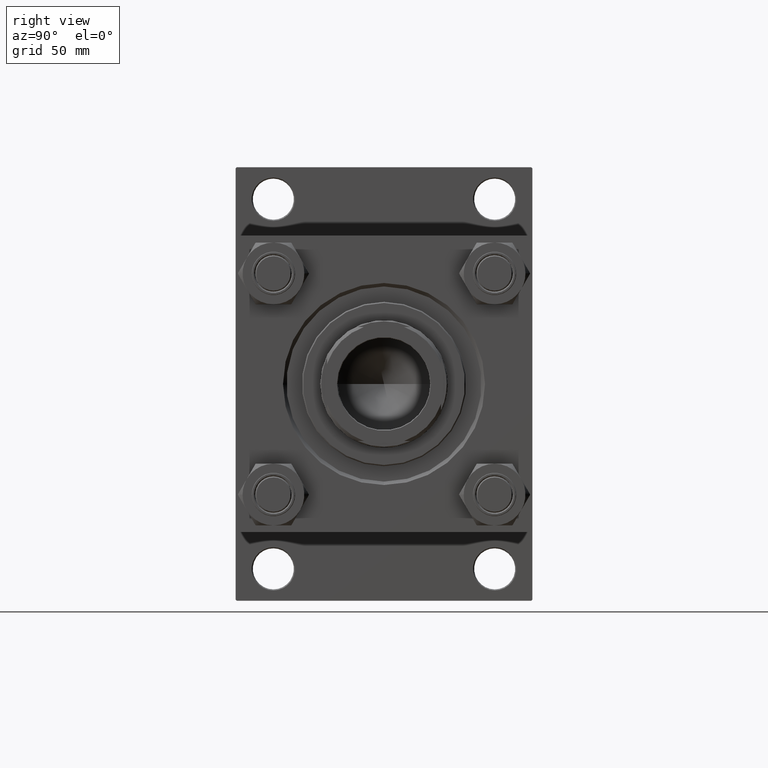
[diagram: clean part render]
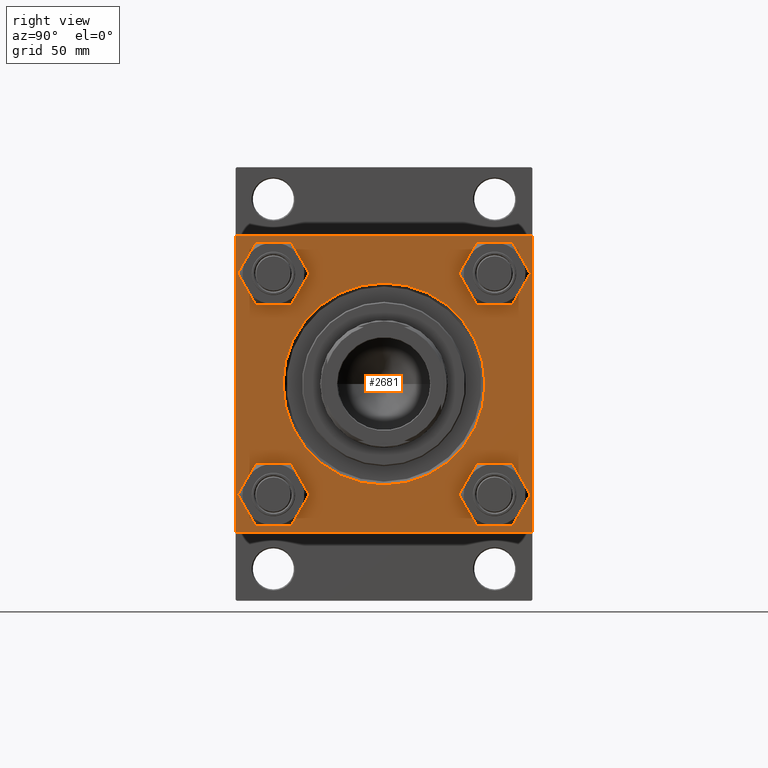
[diagram: same view with one face highlighted and labeled with its STEP entity id]
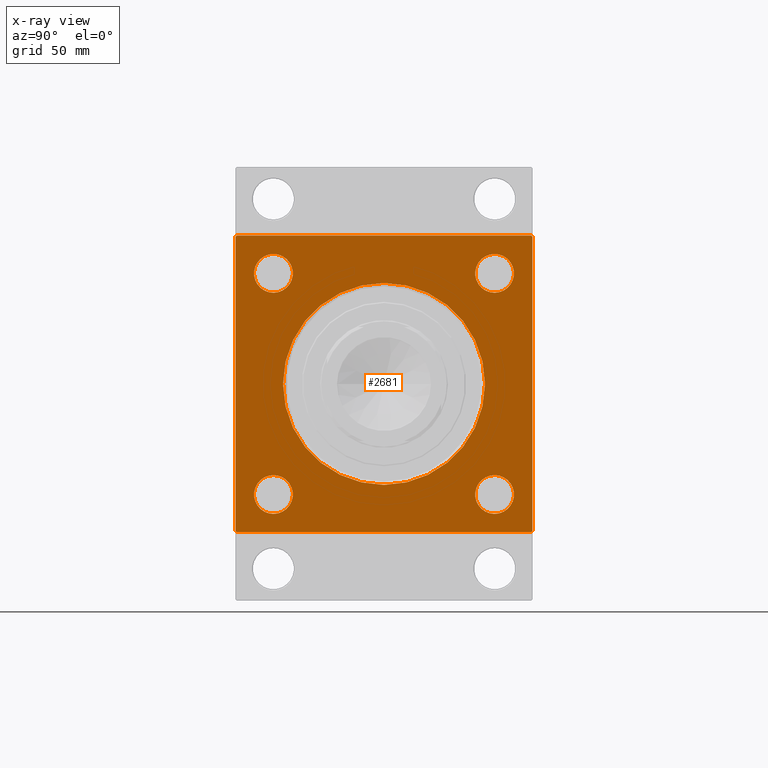
[diagram: x-ray of the same camera — body ghosted, the highlighted face saturated]
A machine part, right view. The second image highlights one B-rep face of the part: STEP entity #2681.
The next image is the same camera in x-ray: the body ghosted, the highlighted face saturated — about 0% of this face is hidden behind the body in this view.
In plain terms, the highlighted planar face has unit normal (-1, 0, 0).
Its self-contained STEP definition (entity closure, byte-faithful):
#22 = EDGE_CURVE ( 'NONE', #35112, #5220, #22775, .T. ) ;
#842 = CARTESIAN_POINT ( 'NONE',  ( 188.0000000000000000, 64.50000000000005684, 65.00000000000001421 ) ) ;
#1157 = EDGE_LOOP ( 'NONE', ( #41750, #43307 ) ) ;
#1278 = VERTEX_POINT ( 'NONE', #19211 ) ;
#1373 = EDGE_CURVE ( 'NONE', #34641, #18215, #15503, .T. ) ;
#1544 = DIRECTION ( 'NONE',  ( 0.000000000000000000, 0.000000000000000000, 1.000000000000000000 ) ) ;
#1864 = CARTESIAN_POINT ( 'NONE',  ( 188.0000000000000000, -48.44999999999999574, -48.45000000000003126 ) ) ;
#1879 = CARTESIAN_POINT ( 'NONE',  ( 188.0000000000000000, 64.49999999999997158, -64.99999999999998579 ) ) ;
#2403 = FACE_BOUND ( 'NONE', #21811, .T. ) ;
#2579 = DIRECTION ( 'NONE',  ( 0.000000000000000000, 0.000000000000000000, 1.000000000000000000 ) ) ;
#2681 = ADVANCED_FACE ( 'NONE', ( #10069, #2403, #45811, #25628, #17977, #49894 ), #26126, .F. ) ;
#2825 = CARTESIAN_POINT ( 'NONE',  ( 188.0000000000000000, 65.00000000000002842, 65.00000000000001421 ) ) ;
#2879 = CARTESIAN_POINT ( 'NONE',  ( 188.0000000000000000, 48.45000000000000995, 48.45000000000001705 ) ) ;
#2899 = EDGE_LOOP ( 'NONE', ( #28071, #20785 ) ) ;
#3054 = VECTOR ( 'NONE', #42919, 1000.000000000000000 ) ;
#3090 = CIRCLE ( 'NONE', #29185, 8.500000000000035527 ) ;
#3822 = CIRCLE ( 'NONE', #5469, 8.500000000000035527 ) ;
#4039 = CARTESIAN_POINT ( 'NONE',  ( 188.0000000000000000, 65.00000000000002842, 65.00000000000001421 ) ) ;
#4054 = EDGE_CURVE ( 'NONE', #36300, #37297, #9095, .T. ) ;
#4265 = DIRECTION ( 'NONE',  ( 0.000000000000000000, 0.000000000000000000, 1.000000000000000000 ) ) ;
#4276 = VECTOR ( 'NONE', #22883, 999.9999999999998863 ) ;
#4628 = CARTESIAN_POINT ( 'NONE',  ( 188.0000000000000000, 48.45000000000000995, 39.94999999999998153 ) ) ;
#5020 = CARTESIAN_POINT ( 'NONE',  ( 188.0000000000000000, 48.45000000000000995, -48.45000000000001705 ) ) ;
#5220 = VERTEX_POINT ( 'NONE', #45478 ) ;
#5365 = VERTEX_POINT ( 'NONE', #12258 ) ;
#5469 = AXIS2_PLACEMENT_3D ( 'NONE', #33476, #30847, #2579 ) ;
#5744 = ORIENTED_EDGE ( 'NONE', *, *, #29798, .T. ) ;
#5845 = AXIS2_PLACEMENT_3D ( 'NONE', #25017, #40611, #1544 ) ;
#6000 = CARTESIAN_POINT ( 'NONE',  ( 188.0000000000000000, 0.000000000000000000, 0.000000000000000000 ) ) ;
#7118 = VERTEX_POINT ( 'NONE', #8338 ) ;
#7213 = DIRECTION ( 'NONE',  ( 0.000000000000000000, 0.000000000000000000, 1.000000000000000000 ) ) ;
#8338 = CARTESIAN_POINT ( 'NONE',  ( 188.0000000000000000, 64.50000000000005684, 65.00000000000001421 ) ) ;
#8648 = AXIS2_PLACEMENT_3D ( 'NONE', #1864, #9535, #20772 ) ;
#8948 = DIRECTION ( 'NONE',  ( 0.000000000000000000, 0.000000000000000000, 1.000000000000000000 ) ) ;
#9095 = CIRCLE ( 'NONE', #5845, 8.500000000000035527 ) ;
#9147 = CARTESIAN_POINT ( 'NONE',  ( 188.0000000000000000, -64.49999999999991473, -65.00000000000001421 ) ) ;
#9535 = DIRECTION ( 'NONE',  ( -1.000000000000000000, 0.000000000000000000, -0.000000000000000000 ) ) ;
#9764 = EDGE_CURVE ( 'NONE', #1278, #19314, #15996, .T. ) ;
#10069 = FACE_BOUND ( 'NONE', #1157, .T. ) ;
#10455 = CIRCLE ( 'NONE', #13700, 8.500000000000035527 ) ;
#10799 = DIRECTION ( 'NONE',  ( -1.000000000000000000, 0.000000000000000000, -0.000000000000000000 ) ) ;
#11432 = EDGE_CURVE ( 'NONE', #47276, #25845, #39391, .T. ) ;
#11710 = LINE ( 'NONE', #4039, #32364 ) ;
#11925 = DIRECTION ( 'NONE',  ( 0.000000000000000000, 0.000000000000000000, -1.000000000000000000 ) ) ;
#11938 = DIRECTION ( 'NONE',  ( 0.000000000000000000, 0.000000000000000000, 1.000000000000000000 ) ) ;
#12082 = CARTESIAN_POINT ( 'NONE',  ( 188.0000000000000000, 65.00000000000002842, 64.50000000000004263 ) ) ;
#12258 = CARTESIAN_POINT ( 'NONE',  ( 188.0000000000000000, -64.49999999999991473, -65.00000000000001421 ) ) ;
#12408 = DIRECTION ( 'NONE',  ( -1.000000000000000000, 0.000000000000000000, -0.000000000000000000 ) ) ;
#12768 = CARTESIAN_POINT ( 'NONE',  ( 188.0000000000000000, -48.44999999999999574, -48.45000000000003126 ) ) ;
#12902 = ORIENTED_EDGE ( 'NONE', *, *, #33559, .T. ) ;
#13429 = VERTEX_POINT ( 'NONE', #19222 ) ;
#13700 = AXIS2_PLACEMENT_3D ( 'NONE', #35142, #12408, #19819 ) ;
#15127 = VECTOR ( 'NONE', #40549, 1000.000000000000000 ) ;
#15503 = CIRCLE ( 'NONE', #33425, 44.25000000000006395 ) ;
#15746 = CARTESIAN_POINT ( 'NONE',  ( 188.0000000000000000, -64.99999999999998579, 64.49999999999997158 ) ) ;
#15996 = LINE ( 'NONE', #15746, #4276 ) ;
#16166 = DIRECTION ( 'NONE',  ( 0.000000000000000000, -0.7071067811865474617, 0.7071067811865474617 ) ) ;
#16408 = ORIENTED_EDGE ( 'NONE', *, *, #42881, .T. ) ;
#16655 = CARTESIAN_POINT ( 'NONE',  ( 188.0000000000000000, 0.000000000000000000, 0.000000000000000000 ) ) ;
#16672 = VECTOR ( 'NONE', #16166, 1000.000000000000114 ) ;
#17977 = FACE_BOUND ( 'NONE', #2899, .T. ) ;
#18215 = VERTEX_POINT ( 'NONE', #48978 ) ;
#18469 = VECTOR ( 'NONE', #11925, 1000.000000000000000 ) ;
#18479 = CARTESIAN_POINT ( 'NONE',  ( 188.0000000000000000, 0.000000000000000000, -44.25000000000006395 ) ) ;
#18638 = EDGE_CURVE ( 'NONE', #33058, #37788, #24127, .T. ) ;
#18842 = AXIS2_PLACEMENT_3D ( 'NONE', #21550, #33547, #49141 ) ;
#18946 = AXIS2_PLACEMENT_3D ( 'NONE', #20094, #31337, #11938 ) ;
#19211 = CARTESIAN_POINT ( 'NONE',  ( 188.0000000000000000, -64.49999999999997158, 65.00000000000000000 ) ) ;
#19222 = CARTESIAN_POINT ( 'NONE',  ( 188.0000000000000000, -64.99999999999998579, -64.49999999999997158 ) ) ;
#19314 = VERTEX_POINT ( 'NONE', #41500 ) ;
#19557 = VERTEX_POINT ( 'NONE', #28183 ) ;
#19610 = ORIENTED_EDGE ( 'NONE', *, *, #28098, .T. ) ;
#19819 = DIRECTION ( 'NONE',  ( 0.000000000000000000, 0.000000000000000000, 1.000000000000000000 ) ) ;
#20094 = CARTESIAN_POINT ( 'NONE',  ( 188.0000000000000000, -48.44999999999999574, 48.45000000000003126 ) ) ;
#20422 = EDGE_CURVE ( 'NONE', #37690, #5365, #37244, .T. ) ;
#20491 = ORIENTED_EDGE ( 'NONE', *, *, #22, .T. ) ;
#20772 = DIRECTION ( 'NONE',  ( 0.000000000000000000, 0.000000000000000000, 1.000000000000000000 ) ) ;
#20785 = ORIENTED_EDGE ( 'NONE', *, *, #33969, .T. ) ;
#21173 = EDGE_CURVE ( 'NONE', #19314, #13429, #50497, .T. ) ;
#21550 = CARTESIAN_POINT ( 'NONE',  ( 188.0000000000000000, 0.000000000000000000, 0.000000000000000000 ) ) ;
#21653 = CARTESIAN_POINT ( 'NONE',  ( 188.0000000000000000, 65.00000000000002842, -64.49999999999992895 ) ) ;
#21704 = ORIENTED_EDGE ( 'NONE', *, *, #4054, .T. ) ;
#21811 = EDGE_LOOP ( 'NONE', ( #16408, #20491 ) ) ;
#21969 = AXIS2_PLACEMENT_3D ( 'NONE', #5020, #39509, #4265 ) ;
#22604 = EDGE_CURVE ( 'NONE', #37690, #19557, #32408, .T. ) ;
#22775 = CIRCLE ( 'NONE', #21969, 8.500000000000035527 ) ;
#22883 = DIRECTION ( 'NONE',  ( -0.000000000000000000, -0.7071067811865376918, -0.7071067811865574537 ) ) ;
#23307 = LINE ( 'NONE', #842, #16672 ) ;
#23521 = CARTESIAN_POINT ( 'NONE',  ( 188.0000000000000000, -48.44999999999999574, 56.95000000000005969 ) ) ;
#23650 = CARTESIAN_POINT ( 'NONE',  ( 188.0000000000000000, -64.99999999999998579, 65.00000000000000000 ) ) ;
#23762 = CARTESIAN_POINT ( 'NONE',  ( 188.0000000000000000, -48.44999999999999574, -39.94999999999999574 ) ) ;
#24053 = DIRECTION ( 'NONE',  ( -1.000000000000000000, 0.000000000000000000, -0.000000000000000000 ) ) ;
#24127 = CIRCLE ( 'NONE', #8648, 8.500000000000035527 ) ;
#24211 = LINE ( 'NONE', #9147, #15127 ) ;
#25017 = CARTESIAN_POINT ( 'NONE',  ( 188.0000000000000000, 48.45000000000000995, 48.45000000000001705 ) ) ;
#25571 = ORIENTED_EDGE ( 'NONE', *, *, #9764, .T. ) ;
#25628 = FACE_BOUND ( 'NONE', #49653, .T. ) ;
#25663 = EDGE_CURVE ( 'NONE', #25845, #47276, #3822, .T. ) ;
#25668 = EDGE_CURVE ( 'NONE', #7118, #1278, #11710, .T. ) ;
#25753 = AXIS2_PLACEMENT_3D ( 'NONE', #6000, #37156, #37918 ) ;
#25845 = VERTEX_POINT ( 'NONE', #44887 ) ;
#26126 = PLANE ( 'NONE',  #18842 ) ;
#28071 = ORIENTED_EDGE ( 'NONE', *, *, #1373, .T. ) ;
#28098 = EDGE_CURVE ( 'NONE', #37297, #36300, #29628, .T. ) ;
#28183 = CARTESIAN_POINT ( 'NONE',  ( 188.0000000000000000, 65.00000000000002842, -64.49999999999992895 ) ) ;
#29065 = DIRECTION ( 'NONE',  ( 0.000000000000000000, -1.000000000000000000, -2.135044278125300850E-16 ) ) ;
#29185 = AXIS2_PLACEMENT_3D ( 'NONE', #12768, #43935, #8948 ) ;
#29628 = CIRCLE ( 'NONE', #42706, 8.500000000000035527 ) ;
#29798 = EDGE_CURVE ( 'NONE', #38568, #7118, #23307, .T. ) ;
#30473 = ORIENTED_EDGE ( 'NONE', *, *, #42392, .F. ) ;
#30847 = DIRECTION ( 'NONE',  ( -1.000000000000000000, 0.000000000000000000, -0.000000000000000000 ) ) ;
#31238 = EDGE_LOOP ( 'NONE', ( #35886, #12902, #36555, #38887, #30473, #5744, #41458, #25571 ) ) ;
#31337 = DIRECTION ( 'NONE',  ( -1.000000000000000000, 0.000000000000000000, -0.000000000000000000 ) ) ;
#31968 = DIRECTION ( 'NONE',  ( 0.000000000000000000, 0.000000000000000000, 1.000000000000000000 ) ) ;
#32364 = VECTOR ( 'NONE', #50531, 1000.000000000000000 ) ;
#32408 = LINE ( 'NONE', #21653, #38833 ) ;
#33058 = VERTEX_POINT ( 'NONE', #23762 ) ;
#33404 = CARTESIAN_POINT ( 'NONE',  ( 188.0000000000000000, 65.00000000000002842, -64.99999999999998579 ) ) ;
#33425 = AXIS2_PLACEMENT_3D ( 'NONE', #16655, #24053, #31968 ) ;
#33476 = CARTESIAN_POINT ( 'NONE',  ( 188.0000000000000000, -48.44999999999999574, 48.45000000000003126 ) ) ;
#33547 = DIRECTION ( 'NONE',  ( -1.000000000000000000, 0.000000000000000000, -0.000000000000000000 ) ) ;
#33559 = EDGE_CURVE ( 'NONE', #13429, #5365, #24211, .T. ) ;
#33969 = EDGE_CURVE ( 'NONE', #18215, #34641, #41260, .T. ) ;
#34641 = VERTEX_POINT ( 'NONE', #18479 ) ;
#34811 = VECTOR ( 'NONE', #29065, 1000.000000000000000 ) ;
#35112 = VERTEX_POINT ( 'NONE', #38340 ) ;
#35142 = CARTESIAN_POINT ( 'NONE',  ( 188.0000000000000000, 48.45000000000000995, -48.45000000000001705 ) ) ;
#35886 = ORIENTED_EDGE ( 'NONE', *, *, #21173, .T. ) ;
#36300 = VERTEX_POINT ( 'NONE', #4628 ) ;
#36555 = ORIENTED_EDGE ( 'NONE', *, *, #20422, .F. ) ;
#37156 = DIRECTION ( 'NONE',  ( -1.000000000000000000, 0.000000000000000000, -0.000000000000000000 ) ) ;
#37244 = LINE ( 'NONE', #33404, #34811 ) ;
#37297 = VERTEX_POINT ( 'NONE', #38251 ) ;
#37690 = VERTEX_POINT ( 'NONE', #1879 ) ;
#37788 = VERTEX_POINT ( 'NONE', #46309 ) ;
#37821 = LINE ( 'NONE', #2825, #3054 ) ;
#37918 = DIRECTION ( 'NONE',  ( 0.000000000000000000, 0.000000000000000000, 1.000000000000000000 ) ) ;
#38185 = ORIENTED_EDGE ( 'NONE', *, *, #11432, .T. ) ;
#38251 = CARTESIAN_POINT ( 'NONE',  ( 188.0000000000000000, 48.45000000000000995, 56.95000000000005258 ) ) ;
#38340 = CARTESIAN_POINT ( 'NONE',  ( 188.0000000000000000, 48.45000000000000995, -39.94999999999998153 ) ) ;
#38568 = VERTEX_POINT ( 'NONE', #12082 ) ;
#38833 = VECTOR ( 'NONE', #44668, 1000.000000000000114 ) ;
#38887 = ORIENTED_EDGE ( 'NONE', *, *, #22604, .T. ) ;
#39348 = EDGE_LOOP ( 'NONE', ( #21704, #19610 ) ) ;
#39391 = CIRCLE ( 'NONE', #18946, 8.500000000000035527 ) ;
#39458 = ORIENTED_EDGE ( 'NONE', *, *, #25663, .T. ) ;
#39509 = DIRECTION ( 'NONE',  ( -1.000000000000000000, 0.000000000000000000, -0.000000000000000000 ) ) ;
#40549 = DIRECTION ( 'NONE',  ( 0.000000000000000000, 0.7071067811865672237, -0.7071067811865279218 ) ) ;
#40611 = DIRECTION ( 'NONE',  ( -1.000000000000000000, 0.000000000000000000, -0.000000000000000000 ) ) ;
#41260 = CIRCLE ( 'NONE', #25753, 44.25000000000006395 ) ;
#41458 = ORIENTED_EDGE ( 'NONE', *, *, #25668, .T. ) ;
#41500 = CARTESIAN_POINT ( 'NONE',  ( 188.0000000000000000, -64.99999999999998579, 64.49999999999997158 ) ) ;
#41750 = ORIENTED_EDGE ( 'NONE', *, *, #42619, .T. ) ;
#42392 = EDGE_CURVE ( 'NONE', #38568, #19557, #37821, .T. ) ;
#42619 = EDGE_CURVE ( 'NONE', #37788, #33058, #3090, .T. ) ;
#42706 = AXIS2_PLACEMENT_3D ( 'NONE', #2879, #10799, #7213 ) ;
#42881 = EDGE_CURVE ( 'NONE', #5220, #35112, #10455, .T. ) ;
#42919 = DIRECTION ( 'NONE',  ( 0.000000000000000000, 0.000000000000000000, -1.000000000000000000 ) ) ;
#43307 = ORIENTED_EDGE ( 'NONE', *, *, #18638, .T. ) ;
#43935 = DIRECTION ( 'NONE',  ( -1.000000000000000000, 0.000000000000000000, -0.000000000000000000 ) ) ;
#44668 = DIRECTION ( 'NONE',  ( -0.000000000000000000, 0.7071067811865474617, 0.7071067811865474617 ) ) ;
#44887 = CARTESIAN_POINT ( 'NONE',  ( 188.0000000000000000, -48.44999999999999574, 39.94999999999999574 ) ) ;
#45478 = CARTESIAN_POINT ( 'NONE',  ( 188.0000000000000000, 48.45000000000000995, -56.95000000000005258 ) ) ;
#45811 = FACE_BOUND ( 'NONE', #39348, .T. ) ;
#46309 = CARTESIAN_POINT ( 'NONE',  ( 188.0000000000000000, -48.44999999999999574, -56.95000000000005969 ) ) ;
#47276 = VERTEX_POINT ( 'NONE', #23521 ) ;
#48978 = CARTESIAN_POINT ( 'NONE',  ( 188.0000000000000000, 5.419062086227046872E-15, 44.25000000000006395 ) ) ;
#49141 = DIRECTION ( 'NONE',  ( -0.000000000000000000, 0.000000000000000000, 1.000000000000000000 ) ) ;
#49653 = EDGE_LOOP ( 'NONE', ( #39458, #38185 ) ) ;
#49894 = FACE_OUTER_BOUND ( 'NONE', #31238, .T. ) ;
#50497 = LINE ( 'NONE', #23650, #18469 ) ;
#50531 = DIRECTION ( 'NONE',  ( 0.000000000000000000, -1.000000000000000000, -1.067522139062650425E-16 ) ) ;